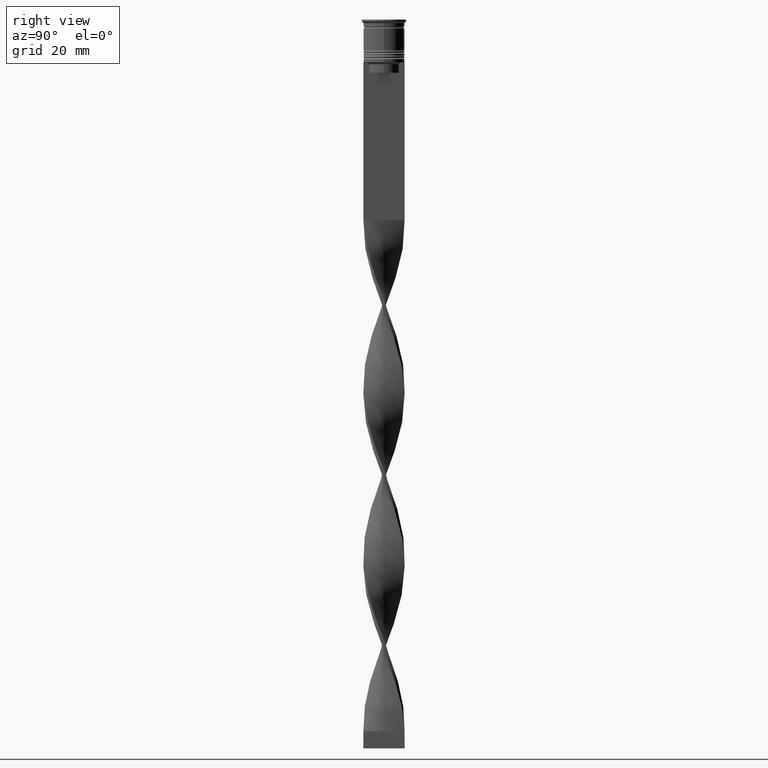
[diagram: clean part render]
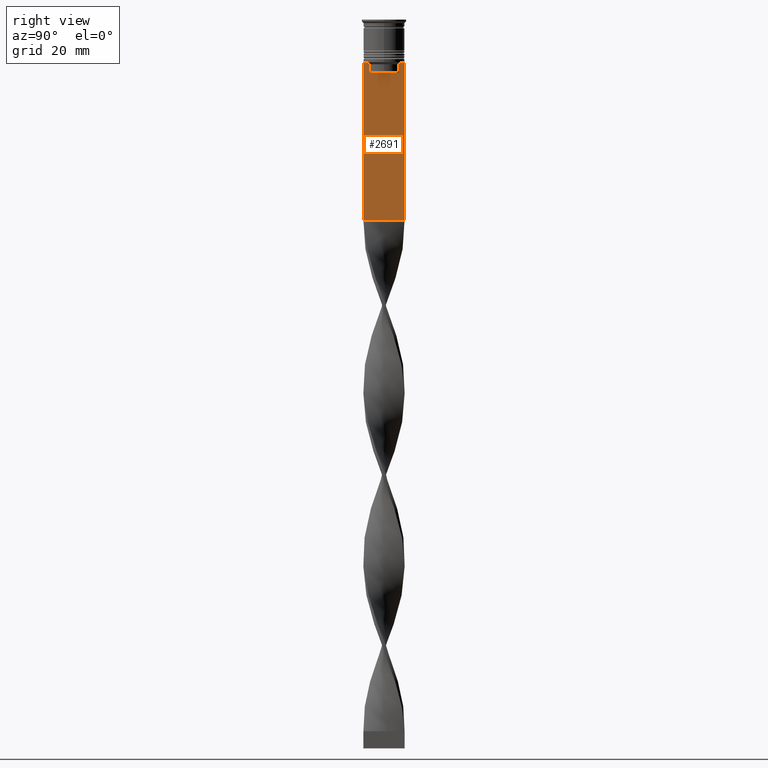
[diagram: same view with one face highlighted and labeled with its STEP entity id]
A machine part, right view. The second image highlights one B-rep face of the part: STEP entity #2691.
In plain terms, the highlighted planar face has unit normal (-1, 0, 0).
Its self-contained STEP definition (entity closure, byte-faithful):
#111 = ORIENTED_EDGE ( 'NONE', *, *, #1929, .T. ) ;
#152 = VERTEX_POINT ( 'NONE', #1408 ) ;
#201 = CARTESIAN_POINT ( 'NONE',  ( 0.5000000000000002220, -6.000000000000000000, -0.4584054212077061097 ) ) ;
#231 = VERTEX_POINT ( 'NONE', #2545 ) ;
#310 = VERTEX_POINT ( 'NONE', #1743 ) ;
#354 = ORIENTED_EDGE ( 'NONE', *, *, #1533, .T. ) ;
#365 = VERTEX_POINT ( 'NONE', #572 ) ;
#383 = VERTEX_POINT ( 'NONE', #1164 ) ;
#400 = DIRECTION ( 'NONE',  ( -1.000000000000000000, 0.000000000000000000, 0.000000000000000000 ) ) ;
#438 = ORIENTED_EDGE ( 'NONE', *, *, #2806, .T. ) ;
#503 = VERTEX_POINT ( 'NONE', #1494 ) ;
#507 = CARTESIAN_POINT ( 'NONE',  ( 0.5000000000000002220, -6.000000000000000000, -12.50000000000000000 ) ) ;
#572 = CARTESIAN_POINT ( 'NONE',  ( 0.5000000000000002220, 5.878775382679627626, -12.50000000000000000 ) ) ;
#575 = EDGE_CURVE ( 'NONE', #3790, #310, #2059, .T. ) ;
#656 = ORIENTED_EDGE ( 'NONE', *, *, #1822, .T. ) ;
#689 = VECTOR ( 'NONE', #1737, 1000.000000000000000 ) ;
#695 = EDGE_CURVE ( 'NONE', #2341, #231, #3488, .T. ) ;
#696 = ORIENTED_EDGE ( 'NONE', *, *, #3252, .F. ) ;
#703 = ORIENTED_EDGE ( 'NONE', *, *, #3735, .T. ) ;
#720 = CARTESIAN_POINT ( 'NONE',  ( 0.5000000000000002220, 4.371498598878878816, -13.00000000000000178 ) ) ;
#817 = CARTESIAN_POINT ( 'NONE',  ( 0.5000000000000002220, 4.371498598878878816, 0.000000000000000000 ) ) ;
#926 = ORIENTED_EDGE ( 'NONE', *, *, #1694, .T. ) ;
#955 = CARTESIAN_POINT ( 'NONE',  ( 0.5000000000000002220, 4.706831415367288329, -12.66671683478479160 ) ) ;
#1048 = CARTESIAN_POINT ( 'NONE',  ( 0.5000000000000002220, -6.000000000000000000, -0.4584054212077061097 ) ) ;
#1076 = CARTESIAN_POINT ( 'NONE',  ( 0.5000000000000002220, -6.000000000000000000, -12.50000000000000000 ) ) ;
#1121 = DIRECTION ( 'NONE',  ( 0.000000000000000000, -1.000000000000000000, 0.000000000000000000 ) ) ;
#1122 = VECTOR ( 'NONE', #3613, 1000.000000000000000 ) ;
#1132 = DIRECTION ( 'NONE',  ( 0.000000000000000000, 0.000000000000000000, -1.000000000000000000 ) ) ;
#1147 = CARTESIAN_POINT ( 'NONE',  ( 0.5000000000000002220, -4.706831372970962768, -12.66671687695981774 ) ) ;
#1164 = CARTESIAN_POINT ( 'NONE',  ( 0.5000000000000002220, 4.371498598878878816, -15.50000000000000000 ) ) ;
#1226 = LINE ( 'NONE', #1480, #3223 ) ;
#1287 = PLANE ( 'NONE',  #2440 ) ;
#1369 = EDGE_LOOP ( 'NONE', ( #3478, #2016, #926, #656, #1846, #111, #703, #2381, #1417, #354, #696, #438 ) ) ;
#1380 = CARTESIAN_POINT ( 'NONE',  ( 0.5000000000000002220, -6.000000000000000000, -12.50000000000000000 ) ) ;
#1408 = CARTESIAN_POINT ( 'NONE',  ( 0.5000000000000002220, 6.000000000000000888, -12.50000000000000000 ) ) ;
#1417 = ORIENTED_EDGE ( 'NONE', *, *, #695, .T. ) ;
#1433 = CARTESIAN_POINT ( 'NONE',  ( 0.5000000000000002220, 4.539195634199896467, -12.83338923751318816 ) ) ;
#1480 = CARTESIAN_POINT ( 'NONE',  ( 0.5000000000000002220, -6.000000000000000000, -58.50000000000000000 ) ) ;
#1494 = CARTESIAN_POINT ( 'NONE',  ( 0.5000000000000002220, -4.874423042781576676, -12.50000000000000000 ) ) ;
#1533 = EDGE_CURVE ( 'NONE', #231, #3324, #1226, .T. ) ;
#1610 = CARTESIAN_POINT ( 'NONE',  ( 0.5000000000000002220, 4.874423042781576676, -12.50000000000000000 ) ) ;
#1681 = VECTOR ( 'NONE', #3186, 1000.000000000000000 ) ;
#1694 = EDGE_CURVE ( 'NONE', #2678, #383, #3448, .T. ) ;
#1737 = DIRECTION ( 'NONE',  ( 0.000000000000000000, -1.000000000000000000, 0.000000000000000000 ) ) ;
#1743 = CARTESIAN_POINT ( 'NONE',  ( 0.5000000000000002220, -4.371498598878878816, -13.00000000000000178 ) ) ;
#1757 = CARTESIAN_POINT ( 'NONE',  ( 0.5000000000000002220, -4.371498598878878816, -13.00000000000000178 ) ) ;
#1777 = EDGE_CURVE ( 'NONE', #365, #2362, #2287, .T. ) ;
#1822 = EDGE_CURVE ( 'NONE', #383, #3790, #2409, .T. ) ;
#1846 = ORIENTED_EDGE ( 'NONE', *, *, #575, .T. ) ;
#1883 = VECTOR ( 'NONE', #1121, 1000.000000000000000 ) ;
#1929 = EDGE_CURVE ( 'NONE', #310, #503, #2333, .T. ) ;
#1981 = LINE ( 'NONE', #2912, #3445 ) ;
#2016 = ORIENTED_EDGE ( 'NONE', *, *, #2517, .T. ) ;
#2059 = LINE ( 'NONE', #3264, #2838 ) ;
#2196 = VECTOR ( 'NONE', #3047, 1000.000000000000000 ) ;
#2287 = LINE ( 'NONE', #3378, #1681 ) ;
#2324 = CARTESIAN_POINT ( 'NONE',  ( 0.5000000000000002220, -4.539195586926423331, -12.83338928448044314 ) ) ;
#2333 = B_SPLINE_CURVE_WITH_KNOTS ( 'NONE', 3,
 ( #1757, #2324, #1147, #3816 ),
 .UNSPECIFIED., .F., .F.,
 ( 4, 4 ),
 ( 0.02089901220910808308, 0.02161421017310286019 ),
 .UNSPECIFIED. ) ;
#2341 = VERTEX_POINT ( 'NONE', #1076 ) ;
#2362 = VERTEX_POINT ( 'NONE', #1610 ) ;
#2381 = ORIENTED_EDGE ( 'NONE', *, *, #3604, .T. ) ;
#2389 = CARTESIAN_POINT ( 'NONE',  ( 0.5000000000000002220, 4.399999999999999467, -15.50000000000000000 ) ) ;
#2393 = DIRECTION ( 'NONE',  ( -0.000000000000000000, -0.000000000000000000, 1.000000000000000000 ) ) ;
#2409 = LINE ( 'NONE', #2389, #1122 ) ;
#2435 = CARTESIAN_POINT ( 'NONE',  ( 0.5000000000000002220, -6.000000000000000000, -12.50000000000000000 ) ) ;
#2440 = AXIS2_PLACEMENT_3D ( 'NONE', #1048, #400, #2524 ) ;
#2475 = LINE ( 'NONE', #2435, #2196 ) ;
#2483 = LINE ( 'NONE', #1380, #689 ) ;
#2514 = B_SPLINE_CURVE_WITH_KNOTS ( 'NONE', 3,
 ( #2729, #955, #1433, #3242 ),
 .UNSPECIFIED., .F., .F.,
 ( 4, 4 ),
 ( 0.008336552452178421987, 0.009045730124312839626 ),
 .UNSPECIFIED. ) ;
#2517 = EDGE_CURVE ( 'NONE', #2362, #2678, #2514, .T. ) ;
#2524 = DIRECTION ( 'NONE',  ( 0.000000000000000000, 0.000000000000000000, 1.000000000000000000 ) ) ;
#2545 = CARTESIAN_POINT ( 'NONE',  ( 0.5000000000000002220, -5.999999999999999112, -58.50000000000000000 ) ) ;
#2615 = VERTEX_POINT ( 'NONE', #3670 ) ;
#2622 = DIRECTION ( 'NONE',  ( 0.000000000000000000, 0.000000000000000000, -1.000000000000000000 ) ) ;
#2678 = VERTEX_POINT ( 'NONE', #720 ) ;
#2691 = ADVANCED_FACE ( 'NONE', ( #3094 ), #1287, .F. ) ;
#2729 = CARTESIAN_POINT ( 'NONE',  ( 0.5000000000000002220, 4.874423042781576676, -12.50000000000000000 ) ) ;
#2806 = EDGE_CURVE ( 'NONE', #152, #365, #2483, .T. ) ;
#2838 = VECTOR ( 'NONE', #2393, 1000.000000000000000 ) ;
#2887 = LINE ( 'NONE', #507, #1883 ) ;
#2912 = CARTESIAN_POINT ( 'NONE',  ( 0.5000000000000002220, 6.000000000000000888, -0.4584054212077061097 ) ) ;
#3047 = DIRECTION ( 'NONE',  ( 0.000000000000000000, -1.000000000000000000, 0.000000000000000000 ) ) ;
#3094 = FACE_OUTER_BOUND ( 'NONE', #1369, .T. ) ;
#3186 = DIRECTION ( 'NONE',  ( 0.000000000000000000, -1.000000000000000000, 0.000000000000000000 ) ) ;
#3223 = VECTOR ( 'NONE', #3226, 1000.000000000000000 ) ;
#3226 = DIRECTION ( 'NONE',  ( 0.000000000000000000, 1.000000000000000000, 0.000000000000000000 ) ) ;
#3242 = CARTESIAN_POINT ( 'NONE',  ( 0.5000000000000002220, 4.371498598878878816, -13.00000000000000178 ) ) ;
#3252 = EDGE_CURVE ( 'NONE', #152, #3324, #1981, .T. ) ;
#3264 = CARTESIAN_POINT ( 'NONE',  ( 0.5000000000000002220, -4.371498598878878816, 0.000000000000000000 ) ) ;
#3321 = VECTOR ( 'NONE', #2622, 1000.000000000000000 ) ;
#3324 = VERTEX_POINT ( 'NONE', #3463 ) ;
#3378 = CARTESIAN_POINT ( 'NONE',  ( 0.5000000000000002220, -6.000000000000000000, -12.50000000000000000 ) ) ;
#3406 = VECTOR ( 'NONE', #1132, 1000.000000000000000 ) ;
#3433 = CARTESIAN_POINT ( 'NONE',  ( 0.5000000000000002220, -4.371498598878878816, -15.50000000000000000 ) ) ;
#3445 = VECTOR ( 'NONE', #3526, 1000.000000000000000 ) ;
#3448 = LINE ( 'NONE', #817, #3321 ) ;
#3463 = CARTESIAN_POINT ( 'NONE',  ( 0.5000000000000002220, 6.000000000000000888, -58.50000000000000000 ) ) ;
#3478 = ORIENTED_EDGE ( 'NONE', *, *, #1777, .T. ) ;
#3488 = LINE ( 'NONE', #201, #3406 ) ;
#3526 = DIRECTION ( 'NONE',  ( 0.000000000000000000, 0.000000000000000000, -1.000000000000000000 ) ) ;
#3604 = EDGE_CURVE ( 'NONE', #2615, #2341, #2887, .T. ) ;
#3613 = DIRECTION ( 'NONE',  ( 0.000000000000000000, -1.000000000000000000, 0.000000000000000000 ) ) ;
#3670 = CARTESIAN_POINT ( 'NONE',  ( 0.5000000000000002220, -5.878775382679627626, -12.50000000000000000 ) ) ;
#3735 = EDGE_CURVE ( 'NONE', #503, #2615, #2475, .T. ) ;
#3790 = VERTEX_POINT ( 'NONE', #3433 ) ;
#3816 = CARTESIAN_POINT ( 'NONE',  ( 0.5000000000000002220, -4.874423042781576676, -12.50000000000000000 ) ) ;